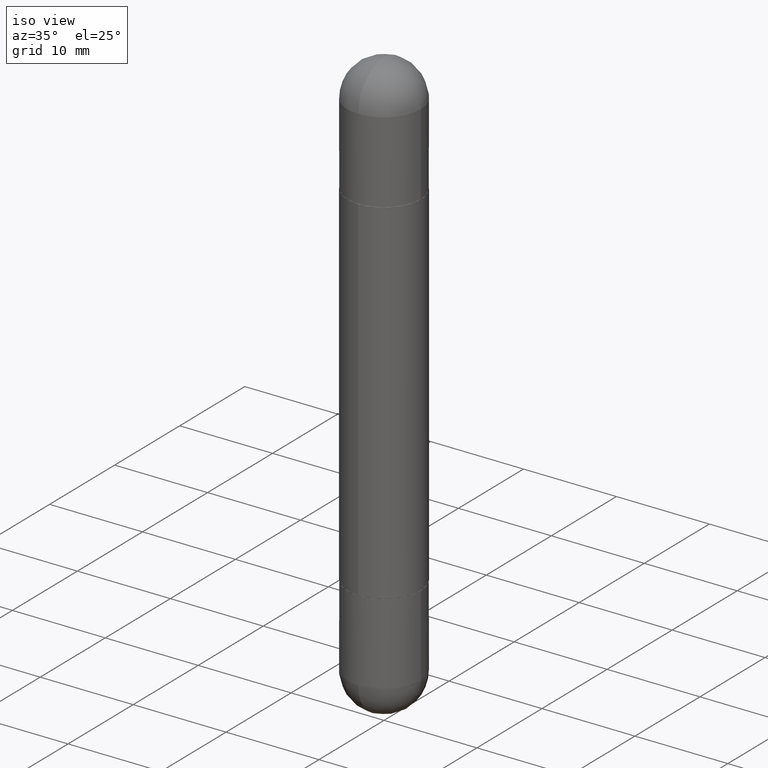
[diagram: clean part render]
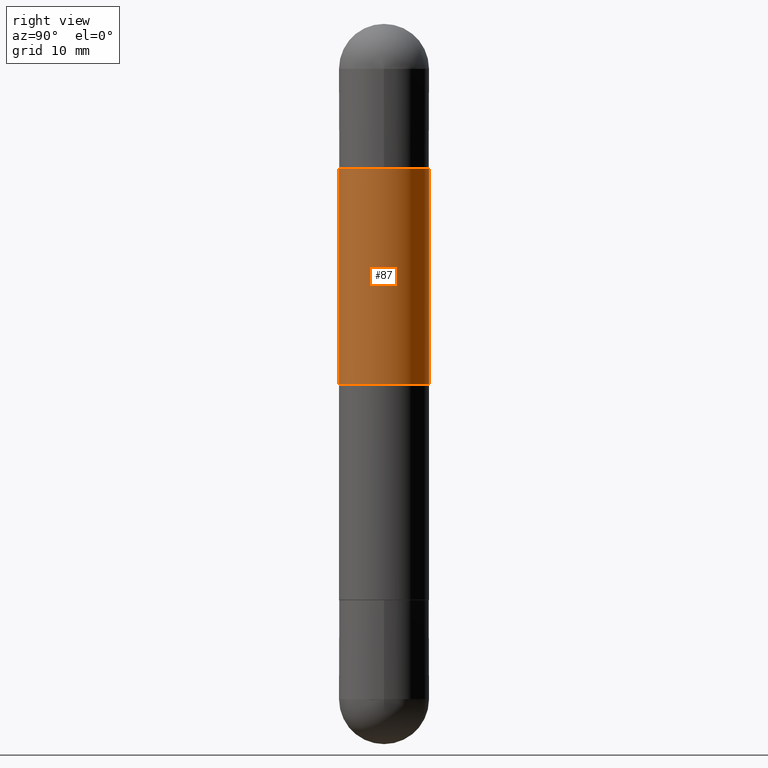
[diagram: tour spotlight — one face highlighted and labeled with its STEP entity id]
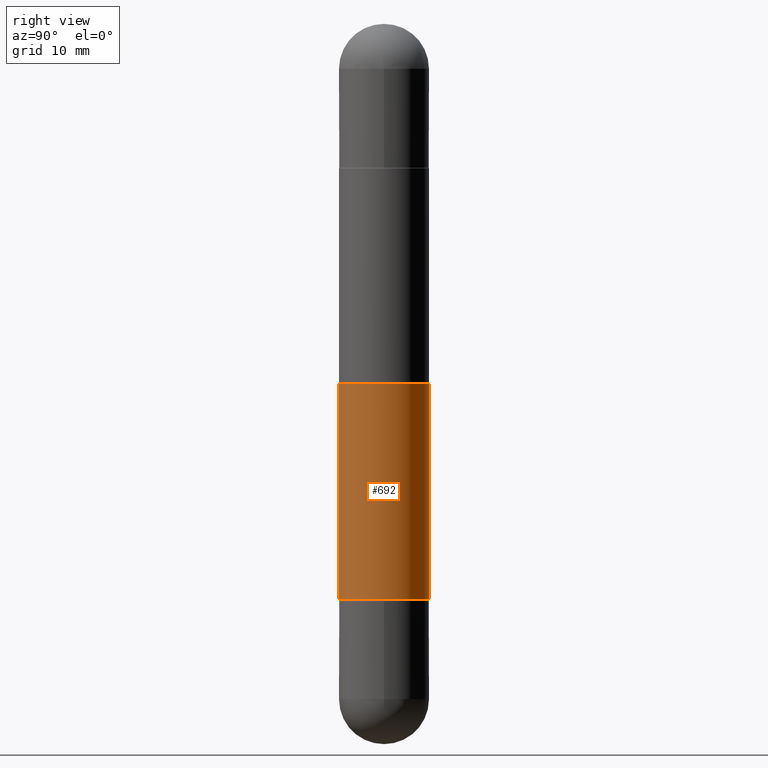
[diagram: tour spotlight — one face highlighted and labeled with its STEP entity id]
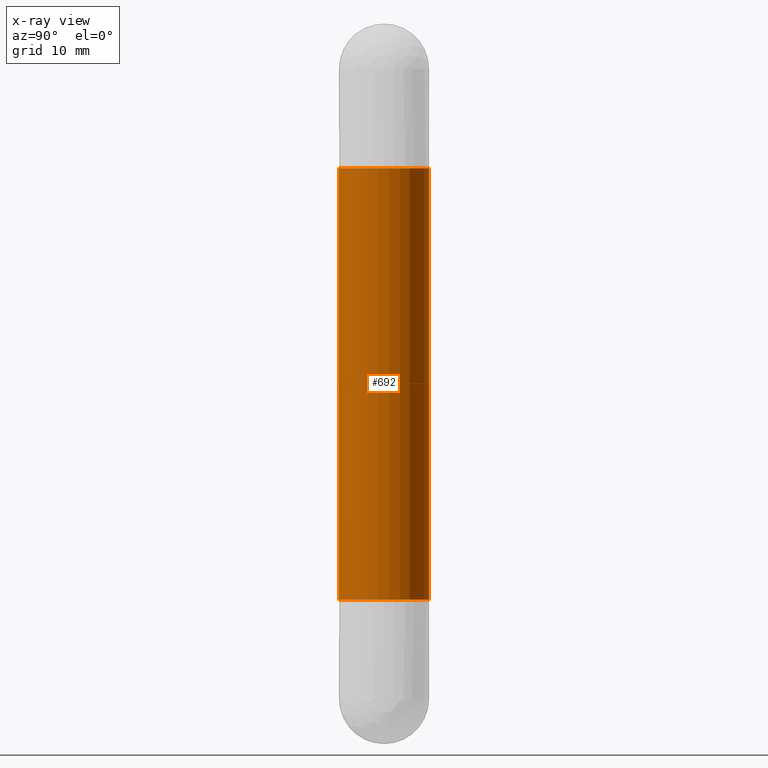
[diagram: x-ray of the same camera — body ghosted, this tour face saturated]
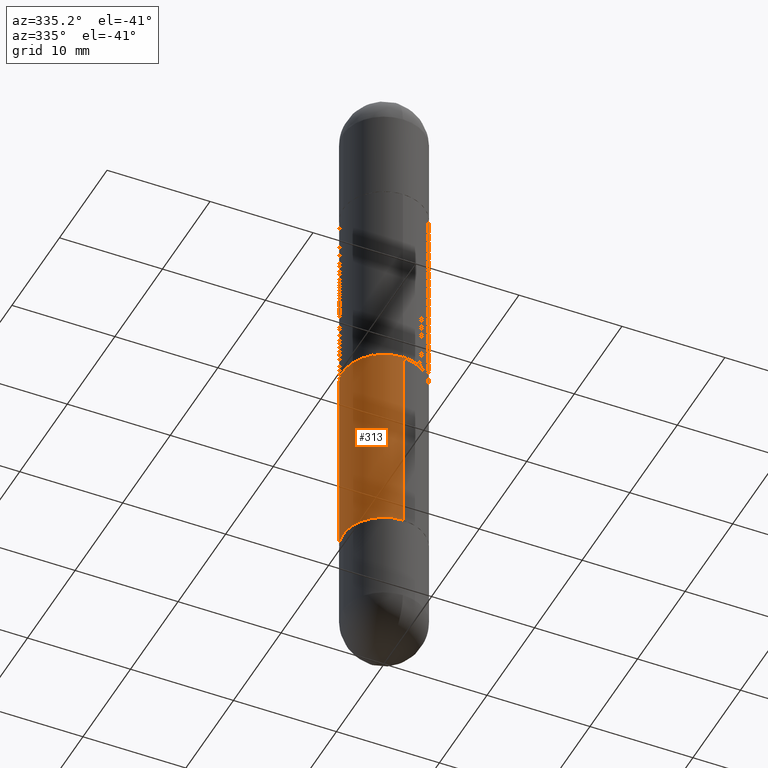
[diagram: tour spotlight — one face highlighted and labeled with its STEP entity id]
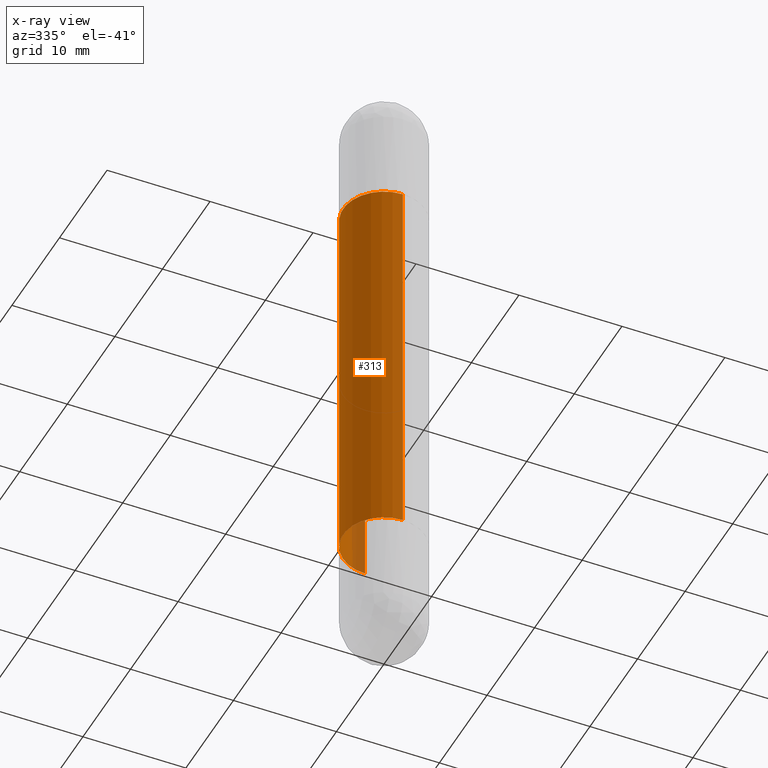
[diagram: x-ray of the same camera — body ghosted, this tour face saturated]
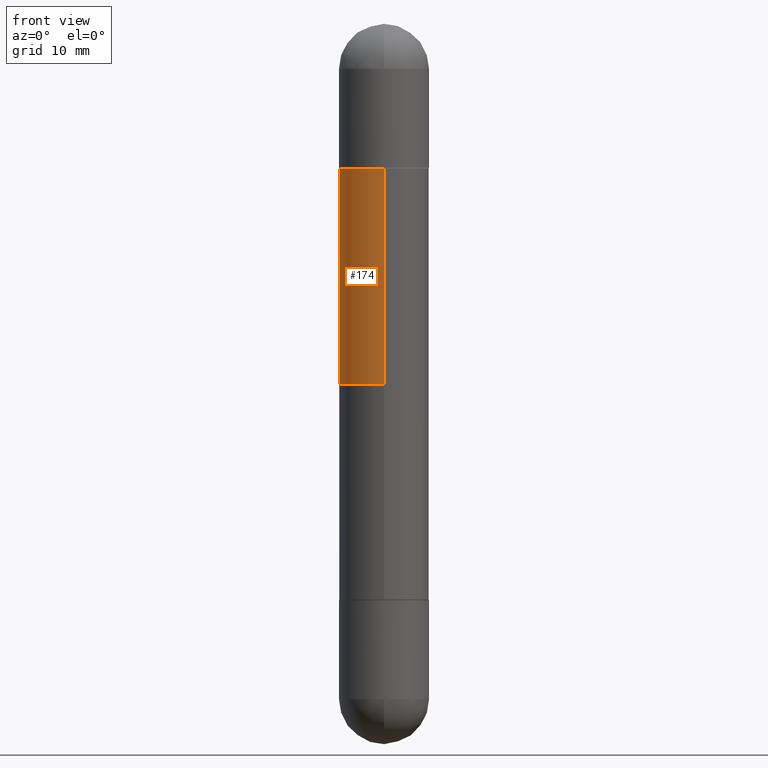
[diagram: tour spotlight — one face highlighted and labeled with its STEP entity id]
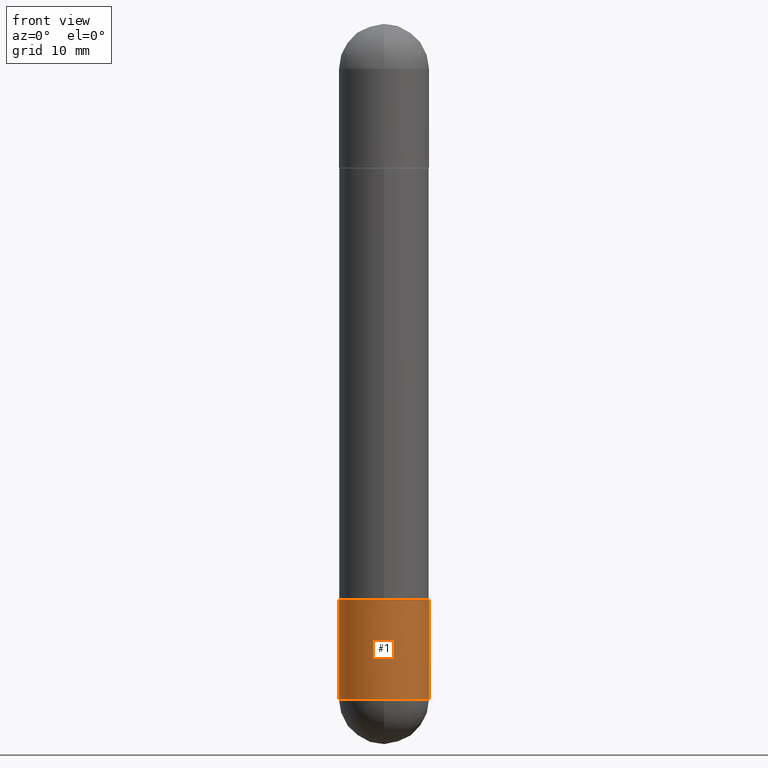
[diagram: tour spotlight — one face highlighted and labeled with its STEP entity id]
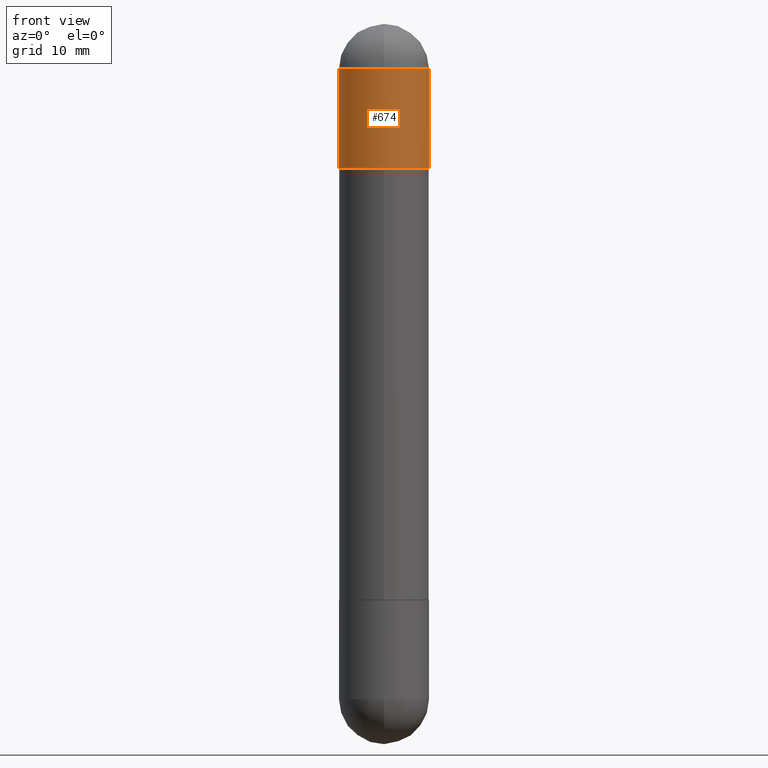
[diagram: tour spotlight — one face highlighted and labeled with its STEP entity id]
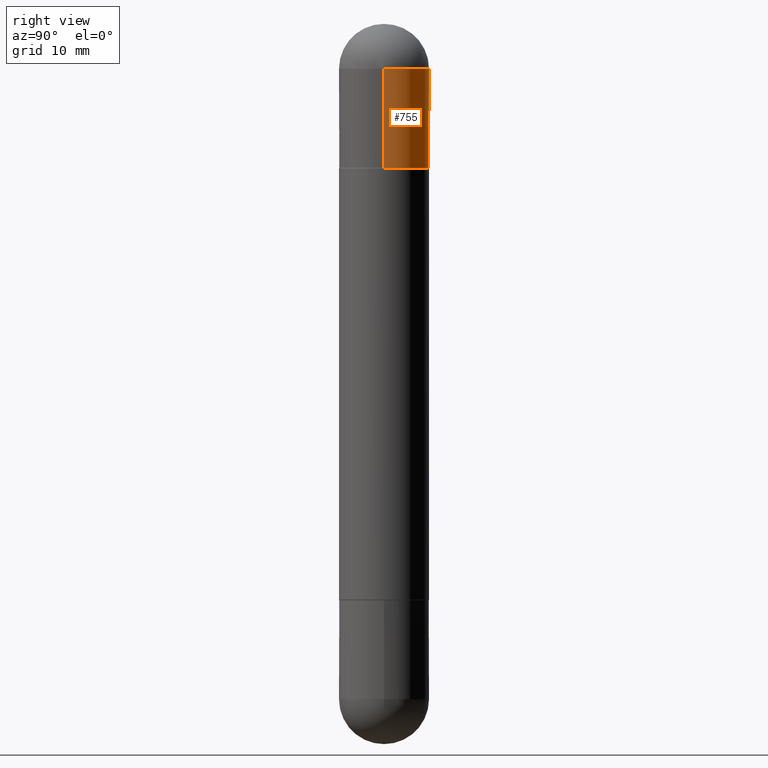
[diagram: tour spotlight — one face highlighted and labeled with its STEP entity id]
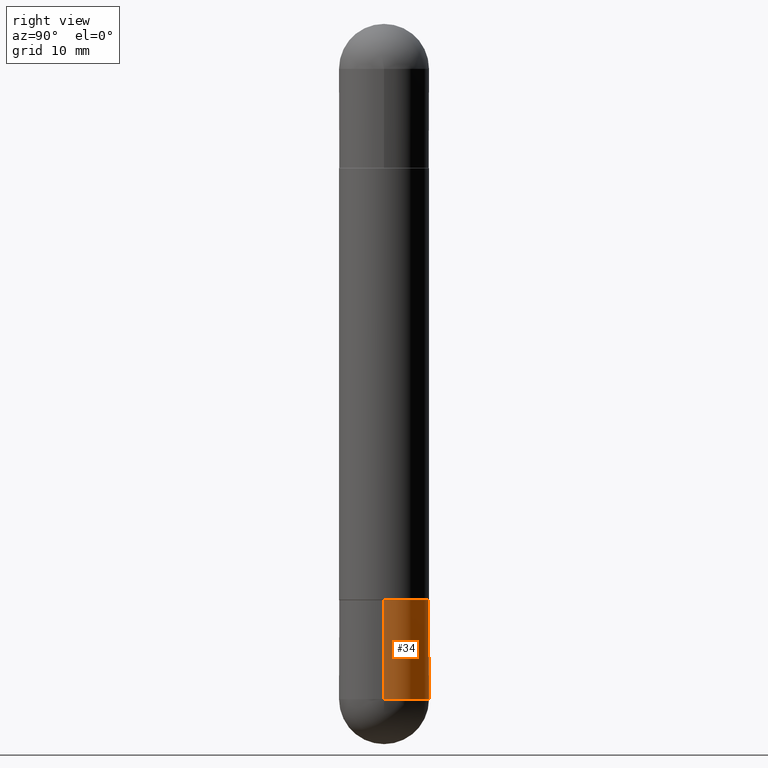
[diagram: tour spotlight — one face highlighted and labeled with its STEP entity id]
A machine part: a face-by-face anatomy tour. The part has 29 B-rep faces; the first image is the clean iso view, then the 8 largest visible faces are spotlighted one at a time (largest first), each with its STEP entity span.

Face 1 — right view, entity #87. In plain terms, the highlighted cylindrical surface (partial cylindrical patch) has radius 3.9688 mm, axis along (-0, 0, -1).
Definition (entity closure, byte-faithful):
#23 = DIRECTION ( 'NONE',  ( -1.000000000000000000, 0.000000000000000000, 0.000000000000000000 ) ) ;
#53 = CARTESIAN_POINT ( 'NONE',  ( 4.887097767456137558E-29, -6.981468022296990773E-15, -0.5010000000000007780 ) ) ;
#61 = CARTESIAN_POINT ( 'NONE',  ( -1.091087918388479568E-15, -0.1562500000000000833, -2.500000000000001332 ) ) ;
#74 = EDGE_LOOP ( 'NONE', ( #208, #501, #621, #330 ) ) ;
#79 = AXIS2_PLACEMENT_3D ( 'NONE', #650, #213, #463 ) ;
#85 = AXIS2_PLACEMENT_3D ( 'NONE', #53, #371, #298 ) ;
#87 = ADVANCED_FACE ( 'NONE', ( #531 ), #582, .T. ) ;
#161 = CARTESIAN_POINT ( 'NONE',  ( 1.071952812151851702E-15, 0.1562499999999931721, -0.5010000000000002229 ) ) ;
#169 = VERTEX_POINT ( 'NONE', #591 ) ;
#208 = ORIENTED_EDGE ( 'NONE', *, *, #406, .F. ) ;
#213 = DIRECTION ( 'NONE',  ( -2.444771269362750222E-29, 3.492480251274133284E-15, -1.000000000000000000 ) ) ;
#221 = CARTESIAN_POINT ( 'NONE',  ( 1.071952812151802201E-15, 0.1562500000000000833, -2.500000000000000000 ) ) ;
#231 = DIRECTION ( 'NONE',  ( -2.444771269362750222E-29, 3.492480251274133284E-15, -1.000000000000000000 ) ) ;
#243 = AXIS2_PLACEMENT_3D ( 'NONE', #785, #350, #23 ) ;
#298 = DIRECTION ( 'NONE',  ( -6.982962677686266711E-15, -1.000000000000000000, -3.496765431890253370E-15 ) ) ;
#304 = LINE ( 'NONE', #61, #421 ) ;
#305 = VERTEX_POINT ( 'NONE', #659 ) ;
#315 = VERTEX_POINT ( 'NONE', #161 ) ;
#330 = ORIENTED_EDGE ( 'NONE', *, *, #557, .F. ) ;
#350 = DIRECTION ( 'NONE',  ( -0.000000000000000000, -0.000000000000000000, -1.000000000000000000 ) ) ;
#371 = DIRECTION ( 'NONE',  ( 2.444771269362750222E-29, -3.492480251274133284E-15, 1.000000000000000000 ) ) ;
#406 = EDGE_CURVE ( 'NONE', #315, #305, #484, .T. ) ;
#421 = VECTOR ( 'NONE', #231, 39.37007874015748143 ) ;
#463 = DIRECTION ( 'NONE',  ( -6.982962677686265133E-15, -1.000000000000000000, -3.496765431890254947E-15 ) ) ;
#484 = LINE ( 'NONE', #221, #606 ) ;
#492 = CIRCLE ( 'NONE', #243, 0.1562500000000000833 ) ;
#501 = ORIENTED_EDGE ( 'NONE', *, *, #703, .F. ) ;
#531 = FACE_OUTER_BOUND ( 'NONE', #74, .T. ) ;
#557 = EDGE_CURVE ( 'NONE', #305, #169, #492, .T. ) ;
#582 = CYLINDRICAL_SURFACE ( 'NONE', #79, 0.1562500000000000833 ) ;
#588 = VERTEX_POINT ( 'NONE', #660 ) ;
#591 = CARTESIAN_POINT ( 'NONE',  ( -1.091087918388439730E-15, -0.1562500000000044409, -1.250000000000000222 ) ) ;
#606 = VECTOR ( 'NONE', #723, 39.37007874015748143 ) ;
#621 = ORIENTED_EDGE ( 'NONE', *, *, #781, .T. ) ;
#650 = CARTESIAN_POINT ( 'NONE',  ( 0.000000000000000000, 0.000000000000000000, -2.500000000000000444 ) ) ;
#659 = CARTESIAN_POINT ( 'NONE',  ( 1.071952812151850716E-15, 0.1562499999999956979, -1.250000000000000222 ) ) ;
#660 = CARTESIAN_POINT ( 'NONE',  ( -1.091087918388431447E-15, -0.1562500000000071887, -0.5010000000000013332 ) ) ;
#703 = EDGE_CURVE ( 'NONE', #588, #315, #740, .T. ) ;
#723 = DIRECTION ( 'NONE',  ( -2.444771269362750222E-29, 3.492480251274133284E-15, -1.000000000000000000 ) ) ;
#740 = CIRCLE ( 'NONE', #85, 0.1562500000000001665 ) ;
#781 = EDGE_CURVE ( 'NONE', #588, #169, #304, .T. ) ;
#785 = CARTESIAN_POINT ( 'NONE',  ( 3.055964086703438408E-29, -4.365600314092667690E-15, -1.250000000000000222 ) ) ;

Face 2 — right view, entity #692. An x-ray twin of the same camera follows (body ghosted, this face saturated) — the face is partly hidden behind the body. In plain terms, the highlighted cylindrical surface (partial cylindrical patch) has radius 3.9688 mm, axis along (-0, 0, -1).
Definition (entity closure, byte-faithful):
#3 = AXIS2_PLACEMENT_3D ( 'NONE', #590, #215, #717 ) ;
#35 = CARTESIAN_POINT ( 'NONE',  ( 1.071952812151851702E-15, 0.1562499999999931721, -0.5010000000000002229 ) ) ;
#49 = CARTESIAN_POINT ( 'NONE',  ( -1.091087918388479568E-15, -0.1562500000000000833, -2.500000000000001332 ) ) ;
#68 = DIRECTION ( 'NONE',  ( 2.444771269362750222E-29, -3.492480251274133284E-15, 1.000000000000000000 ) ) ;
#81 = ORIENTED_EDGE ( 'NONE', *, *, #493, .F. ) ;
#103 = DIRECTION ( 'NONE',  ( -2.444771269362750222E-29, 3.492480251274133284E-15, -1.000000000000000000 ) ) ;
#147 = AXIS2_PLACEMENT_3D ( 'NONE', #647, #585, #411 ) ;
#215 = DIRECTION ( 'NONE',  ( -2.444771269362750222E-29, 3.492480251274133284E-15, -1.000000000000000000 ) ) ;
#222 = VERTEX_POINT ( 'NONE', #663 ) ;
#235 = VECTOR ( 'NONE', #809, 39.37007874015748143 ) ;
#297 = CIRCLE ( 'NONE', #751, 0.1562500000000001665 ) ;
#306 = VERTEX_POINT ( 'NONE', #736 ) ;
#364 = VERTEX_POINT ( 'NONE', #35 ) ;
#411 = DIRECTION ( 'NONE',  ( -6.982962677686266711E-15, -1.000000000000000000, 3.496765431890253370E-15 ) ) ;
#469 = CARTESIAN_POINT ( 'NONE',  ( -1.091087918388431447E-15, -0.1562500000000071332, -1.998999999999999444 ) ) ;
#475 = CARTESIAN_POINT ( 'NONE',  ( 1.071952812151802201E-15, 0.1562500000000000833, -2.500000000000000000 ) ) ;
#479 = LINE ( 'NONE', #49, #235 ) ;
#493 = EDGE_CURVE ( 'NONE', #306, #364, #297, .T. ) ;
#496 = ORIENTED_EDGE ( 'NONE', *, *, #665, .T. ) ;
#523 = LINE ( 'NONE', #475, #645 ) ;
#530 = CIRCLE ( 'NONE', #147, 0.1562500000000001665 ) ;
#583 = CYLINDRICAL_SURFACE ( 'NONE', #3, 0.1562500000000000833 ) ;
#585 = DIRECTION ( 'NONE',  ( -2.444771269362750222E-29, 3.492480251274133284E-15, 1.000000000000000000 ) ) ;
#590 = CARTESIAN_POINT ( 'NONE',  ( 0.000000000000000000, 0.000000000000000000, -2.500000000000000444 ) ) ;
#605 = EDGE_CURVE ( 'NONE', #364, #222, #523, .T. ) ;
#625 = VERTEX_POINT ( 'NONE', #469 ) ;
#628 = DIRECTION ( 'NONE',  ( -6.982962677686266711E-15, -1.000000000000000000, -3.496765431890253370E-15 ) ) ;
#645 = VECTOR ( 'NONE', #103, 39.37007874015748143 ) ;
#647 = CARTESIAN_POINT ( 'NONE',  ( 4.887097767456137558E-29, -6.981468022296990773E-15, -1.998999999999999888 ) ) ;
#656 = FACE_OUTER_BOUND ( 'NONE', #733, .T. ) ;
#663 = CARTESIAN_POINT ( 'NONE',  ( 1.071952812151832967E-15, 0.1562499999999931999, -1.999000000000000554 ) ) ;
#665 = EDGE_CURVE ( 'NONE', #625, #222, #530, .T. ) ;
#687 = CARTESIAN_POINT ( 'NONE',  ( 4.887097767456137558E-29, -6.981468022296990773E-15, -0.5010000000000007780 ) ) ;
#692 = ADVANCED_FACE ( 'NONE', ( #656 ), #583, .T. ) ;
#717 = DIRECTION ( 'NONE',  ( -6.982962677686265133E-15, -1.000000000000000000, -3.496765431890254947E-15 ) ) ;
#733 = EDGE_LOOP ( 'NONE', ( #801, #81, #743, #496 ) ) ;
#736 = CARTESIAN_POINT ( 'NONE',  ( -1.091087918388431447E-15, -0.1562500000000071887, -0.5010000000000013332 ) ) ;
#743 = ORIENTED_EDGE ( 'NONE', *, *, #777, .T. ) ;
#751 = AXIS2_PLACEMENT_3D ( 'NONE', #687, #68, #628 ) ;
#777 = EDGE_CURVE ( 'NONE', #306, #625, #479, .T. ) ;
#801 = ORIENTED_EDGE ( 'NONE', *, *, #605, .F. ) ;
#809 = DIRECTION ( 'NONE',  ( -2.444771269362750222E-29, 3.492480251274133284E-15, -1.000000000000000000 ) ) ;

Face 3 — auxiliary view, entity #313. An x-ray twin of the same camera follows (body ghosted, this face saturated) — the face is partly hidden behind the body. In plain terms, the highlighted cylindrical surface (partial cylindrical patch) has radius 3.9688 mm, axis along (-0, 0, -1).
Definition (entity closure, byte-faithful):
#35 = CARTESIAN_POINT ( 'NONE',  ( 1.071952812151851702E-15, 0.1562499999999931721, -0.5010000000000002229 ) ) ;
#49 = CARTESIAN_POINT ( 'NONE',  ( -1.091087918388479568E-15, -0.1562500000000000833, -2.500000000000001332 ) ) ;
#82 = DIRECTION ( 'NONE',  ( -2.444771269362750222E-29, 3.492480251274133284E-15, 1.000000000000000000 ) ) ;
#103 = DIRECTION ( 'NONE',  ( -2.444771269362750222E-29, 3.492480251274133284E-15, -1.000000000000000000 ) ) ;
#105 = ORIENTED_EDGE ( 'NONE', *, *, #605, .T. ) ;
#114 = AXIS2_PLACEMENT_3D ( 'NONE', #316, #82, #273 ) ;
#115 = CARTESIAN_POINT ( 'NONE',  ( 0.000000000000000000, 0.000000000000000000, -2.500000000000000444 ) ) ;
#187 = FACE_OUTER_BOUND ( 'NONE', #365, .T. ) ;
#190 = CIRCLE ( 'NONE', #664, 0.1562500000000001665 ) ;
#222 = VERTEX_POINT ( 'NONE', #663 ) ;
#235 = VECTOR ( 'NONE', #809, 39.37007874015748143 ) ;
#273 = DIRECTION ( 'NONE',  ( -6.982962677686266711E-15, -1.000000000000000000, 3.496765431890253370E-15 ) ) ;
#301 = DIRECTION ( 'NONE',  ( -2.444771269362750222E-29, 3.492480251274133284E-15, -1.000000000000000000 ) ) ;
#306 = VERTEX_POINT ( 'NONE', #736 ) ;
#309 = CARTESIAN_POINT ( 'NONE',  ( 4.887097767456137558E-29, -6.981468022296990773E-15, -0.5010000000000007780 ) ) ;
#313 = ADVANCED_FACE ( 'NONE', ( #187 ), #672, .T. ) ;
#316 = CARTESIAN_POINT ( 'NONE',  ( 4.887097767456137558E-29, -6.981468022296990773E-15, -1.998999999999999888 ) ) ;
#324 = CIRCLE ( 'NONE', #114, 0.1562500000000001665 ) ;
#359 = DIRECTION ( 'NONE',  ( -6.982962677686266711E-15, -1.000000000000000000, -3.496765431890253370E-15 ) ) ;
#364 = VERTEX_POINT ( 'NONE', #35 ) ;
#365 = EDGE_LOOP ( 'NONE', ( #671, #105, #434, #682 ) ) ;
#434 = ORIENTED_EDGE ( 'NONE', *, *, #542, .T. ) ;
#469 = CARTESIAN_POINT ( 'NONE',  ( -1.091087918388431447E-15, -0.1562500000000071332, -1.998999999999999444 ) ) ;
#475 = CARTESIAN_POINT ( 'NONE',  ( 1.071952812151802201E-15, 0.1562500000000000833, -2.500000000000000000 ) ) ;
#479 = LINE ( 'NONE', #49, #235 ) ;
#523 = LINE ( 'NONE', #475, #645 ) ;
#542 = EDGE_CURVE ( 'NONE', #222, #625, #324, .T. ) ;
#605 = EDGE_CURVE ( 'NONE', #364, #222, #523, .T. ) ;
#608 = DIRECTION ( 'NONE',  ( 2.444771269362750222E-29, -3.492480251274133284E-15, 1.000000000000000000 ) ) ;
#625 = VERTEX_POINT ( 'NONE', #469 ) ;
#644 = AXIS2_PLACEMENT_3D ( 'NONE', #115, #301, #662 ) ;
#645 = VECTOR ( 'NONE', #103, 39.37007874015748143 ) ;
#662 = DIRECTION ( 'NONE',  ( -6.982962677686265133E-15, -1.000000000000000000, -3.496765431890254947E-15 ) ) ;
#663 = CARTESIAN_POINT ( 'NONE',  ( 1.071952812151832967E-15, 0.1562499999999931999, -1.999000000000000554 ) ) ;
#664 = AXIS2_PLACEMENT_3D ( 'NONE', #309, #608, #359 ) ;
#671 = ORIENTED_EDGE ( 'NONE', *, *, #727, .F. ) ;
#672 = CYLINDRICAL_SURFACE ( 'NONE', #644, 0.1562500000000000833 ) ;
#682 = ORIENTED_EDGE ( 'NONE', *, *, #777, .F. ) ;
#727 = EDGE_CURVE ( 'NONE', #364, #306, #190, .T. ) ;
#736 = CARTESIAN_POINT ( 'NONE',  ( -1.091087918388431447E-15, -0.1562500000000071887, -0.5010000000000013332 ) ) ;
#777 = EDGE_CURVE ( 'NONE', #306, #625, #479, .T. ) ;
#809 = DIRECTION ( 'NONE',  ( -2.444771269362750222E-29, 3.492480251274133284E-15, -1.000000000000000000 ) ) ;

Face 4 — front view, entity #174. In plain terms, the highlighted cylindrical surface (partial cylindrical patch) has radius 3.9688 mm, axis along (-0, 0, -1).
Definition (entity closure, byte-faithful):
#10 = EDGE_LOOP ( 'NONE', ( #666, #443, #438, #497 ) ) ;
#61 = CARTESIAN_POINT ( 'NONE',  ( -1.091087918388479568E-15, -0.1562500000000000833, -2.500000000000001332 ) ) ;
#104 = CARTESIAN_POINT ( 'NONE',  ( 0.000000000000000000, 0.000000000000000000, -2.500000000000000444 ) ) ;
#161 = CARTESIAN_POINT ( 'NONE',  ( 1.071952812151851702E-15, 0.1562499999999931721, -0.5010000000000002229 ) ) ;
#169 = VERTEX_POINT ( 'NONE', #591 ) ;
#174 = ADVANCED_FACE ( 'NONE', ( #800 ), #286, .T. ) ;
#203 = EDGE_CURVE ( 'NONE', #315, #588, #236, .T. ) ;
#221 = CARTESIAN_POINT ( 'NONE',  ( 1.071952812151802201E-15, 0.1562500000000000833, -2.500000000000000000 ) ) ;
#231 = DIRECTION ( 'NONE',  ( -2.444771269362750222E-29, 3.492480251274133284E-15, -1.000000000000000000 ) ) ;
#236 = CIRCLE ( 'NONE', #489, 0.1562500000000001665 ) ;
#271 = AXIS2_PLACEMENT_3D ( 'NONE', #472, #353, #418 ) ;
#286 = CYLINDRICAL_SURFACE ( 'NONE', #515, 0.1562500000000000833 ) ;
#304 = LINE ( 'NONE', #61, #421 ) ;
#305 = VERTEX_POINT ( 'NONE', #659 ) ;
#315 = VERTEX_POINT ( 'NONE', #161 ) ;
#325 = EDGE_CURVE ( 'NONE', #169, #305, #619, .T. ) ;
#353 = DIRECTION ( 'NONE',  ( -0.000000000000000000, -0.000000000000000000, -1.000000000000000000 ) ) ;
#405 = DIRECTION ( 'NONE',  ( -2.444771269362750222E-29, 3.492480251274133284E-15, -1.000000000000000000 ) ) ;
#406 = EDGE_CURVE ( 'NONE', #315, #305, #484, .T. ) ;
#418 = DIRECTION ( 'NONE',  ( -1.000000000000000000, 0.000000000000000000, 0.000000000000000000 ) ) ;
#421 = VECTOR ( 'NONE', #231, 39.37007874015748143 ) ;
#438 = ORIENTED_EDGE ( 'NONE', *, *, #325, .F. ) ;
#443 = ORIENTED_EDGE ( 'NONE', *, *, #406, .T. ) ;
#472 = CARTESIAN_POINT ( 'NONE',  ( 3.055964086703438408E-29, -4.365600314092667690E-15, -1.250000000000000222 ) ) ;
#480 = CARTESIAN_POINT ( 'NONE',  ( 4.887097767456137558E-29, -6.981468022296990773E-15, -0.5010000000000007780 ) ) ;
#484 = LINE ( 'NONE', #221, #606 ) ;
#489 = AXIS2_PLACEMENT_3D ( 'NONE', #480, #596, #648 ) ;
#497 = ORIENTED_EDGE ( 'NONE', *, *, #781, .F. ) ;
#515 = AXIS2_PLACEMENT_3D ( 'NONE', #104, #405, #786 ) ;
#588 = VERTEX_POINT ( 'NONE', #660 ) ;
#591 = CARTESIAN_POINT ( 'NONE',  ( -1.091087918388439730E-15, -0.1562500000000044409, -1.250000000000000222 ) ) ;
#596 = DIRECTION ( 'NONE',  ( 2.444771269362750222E-29, -3.492480251274133284E-15, 1.000000000000000000 ) ) ;
#606 = VECTOR ( 'NONE', #723, 39.37007874015748143 ) ;
#619 = CIRCLE ( 'NONE', #271, 0.1562500000000000833 ) ;
#648 = DIRECTION ( 'NONE',  ( -6.982962677686266711E-15, -1.000000000000000000, -3.496765431890253370E-15 ) ) ;
#659 = CARTESIAN_POINT ( 'NONE',  ( 1.071952812151850716E-15, 0.1562499999999956979, -1.250000000000000222 ) ) ;
#660 = CARTESIAN_POINT ( 'NONE',  ( -1.091087918388431447E-15, -0.1562500000000071887, -0.5010000000000013332 ) ) ;
#666 = ORIENTED_EDGE ( 'NONE', *, *, #203, .F. ) ;
#723 = DIRECTION ( 'NONE',  ( -2.444771269362750222E-29, 3.492480251274133284E-15, -1.000000000000000000 ) ) ;
#781 = EDGE_CURVE ( 'NONE', #588, #169, #304, .T. ) ;
#786 = DIRECTION ( 'NONE',  ( -6.982962677686265133E-15, -1.000000000000000000, -3.496765431890254947E-15 ) ) ;
#800 = FACE_OUTER_BOUND ( 'NONE', #10, .T. ) ;

Face 5 — front view, entity #1. In plain terms, the highlighted cylindrical surface (partial cylindrical patch) has radius 3.9688 mm, axis along (-0, 0, 1).
Definition (entity closure, byte-faithful):
#1 = ADVANCED_FACE ( 'NONE', ( #642 ), #84, .T. ) ;
#11 = DIRECTION ( 'NONE',  ( -2.445468806185136877E-29, 3.491481338843145188E-15, 1.000000000000000000 ) ) ;
#41 = DIRECTION ( 'NONE',  ( -2.445468806185136597E-29, 3.491481338843145583E-15, 1.000000000000000000 ) ) ;
#43 = CARTESIAN_POINT ( 'NONE',  ( 5.731567514496413899E-29, -8.183159387913622595E-15, -2.343750000000000000 ) ) ;
#77 = VERTEX_POINT ( 'NONE', #710 ) ;
#84 = CYLINDRICAL_SURFACE ( 'NONE', #93, 0.1562500000000000000 ) ;
#93 = AXIS2_PLACEMENT_3D ( 'NONE', #337, #758, #196 ) ;
#96 = DIRECTION ( 'NONE',  ( -2.445468806185136597E-29, 3.491481338843145583E-15, 1.000000000000000000 ) ) ;
#144 = CARTESIAN_POINT ( 'NONE',  ( -0.1562500000000000000, -6.472838008174800734E-15, -2.343750000000000000 ) ) ;
#155 = AXIS2_PLACEMENT_3D ( 'NONE', #351, #41, #795 ) ;
#173 = EDGE_LOOP ( 'NONE', ( #567, #453, #498, #491, #609 ) ) ;
#176 = VECTOR ( 'NONE', #459, 39.37007874015748143 ) ;
#177 = EDGE_CURVE ( 'NONE', #77, #783, #762, .T. ) ;
#196 = DIRECTION ( 'NONE',  ( 1.000000000000000000, -6.982962677686266711E-15, 4.876176775795936353E-29 ) ) ;
#254 = LINE ( 'NONE', #263, #796 ) ;
#263 = CARTESIAN_POINT ( 'NONE',  ( -0.1562500000000000000, 1.110223024625156540E-15, -7.685836078523291160E-30 ) ) ;
#265 = EDGE_CURVE ( 'NONE', #572, #77, #632, .T. ) ;
#275 = CARTESIAN_POINT ( 'NONE',  ( 0.1562500000000000000, -1.091087918388479174E-15, 7.619026212181150377E-30 ) ) ;
#337 = CARTESIAN_POINT ( 'NONE',  ( 0.000000000000000000, 0.000000000000000000, 0.000000000000000000 ) ) ;
#351 = CARTESIAN_POINT ( 'NONE',  ( 5.731567514496413899E-29, -8.183159387913622595E-15, -2.343750000000000000 ) ) ;
#363 = CARTESIAN_POINT ( 'NONE',  ( 4.890937612370273194E-29, -6.982962677686291165E-15, -2.000000000000000000 ) ) ;
#368 = AXIS2_PLACEMENT_3D ( 'NONE', #363, #668, #799 ) ;
#422 = CARTESIAN_POINT ( 'NONE',  ( 0.1562500000000000000, -8.074050596074770339E-15, -2.000000000000000000 ) ) ;
#453 = ORIENTED_EDGE ( 'NONE', *, *, #265, .T. ) ;
#459 = DIRECTION ( 'NONE',  ( -2.445468806185136877E-29, 3.491481338843145188E-15, 1.000000000000000000 ) ) ;
#485 = EDGE_CURVE ( 'NONE', #572, #655, #254, .T. ) ;
#491 = ORIENTED_EDGE ( 'NONE', *, *, #571, .T. ) ;
#498 = ORIENTED_EDGE ( 'NONE', *, *, #177, .T. ) ;
#567 = ORIENTED_EDGE ( 'NONE', *, *, #485, .F. ) ;
#571 = EDGE_CURVE ( 'NONE', #783, #738, #595, .T. ) ;
#572 = VERTEX_POINT ( 'NONE', #144 ) ;
#595 = LINE ( 'NONE', #275, #176 ) ;
#598 = CARTESIAN_POINT ( 'NONE',  ( -0.1562500000000000000, -6.472838008174799945E-15, -2.000000000000000000 ) ) ;
#601 = DIRECTION ( 'NONE',  ( 1.000000000000000000, -6.982962677686262766E-15, 0.000000000000000000 ) ) ;
#609 = ORIENTED_EDGE ( 'NONE', *, *, #766, .F. ) ;
#614 = CIRCLE ( 'NONE', #368, 0.1562500000000000000 ) ;
#632 = CIRCLE ( 'NONE', #769, 0.1562500000000000000 ) ;
#642 = FACE_OUTER_BOUND ( 'NONE', #173, .T. ) ;
#655 = VERTEX_POINT ( 'NONE', #598 ) ;
#668 = DIRECTION ( 'NONE',  ( -2.445468806185136597E-29, 3.491481338843145583E-15, 1.000000000000000000 ) ) ;
#677 = CARTESIAN_POINT ( 'NONE',  ( 0.1562500000000000000, -8.674148951188436448E-15, -2.343750000000000000 ) ) ;
#710 = CARTESIAN_POINT ( 'NONE',  ( -1.110223024625101517E-15, -0.1562500000000085487, -2.343749999999999556 ) ) ;
#738 = VERTEX_POINT ( 'NONE', #422 ) ;
#758 = DIRECTION ( 'NONE',  ( -2.445468806185136597E-29, 3.491481338843145583E-15, 1.000000000000000000 ) ) ;
#762 = CIRCLE ( 'NONE', #155, 0.1562500000000000000 ) ;
#766 = EDGE_CURVE ( 'NONE', #655, #738, #614, .T. ) ;
#769 = AXIS2_PLACEMENT_3D ( 'NONE', #43, #96, #601 ) ;
#783 = VERTEX_POINT ( 'NONE', #677 ) ;
#795 = DIRECTION ( 'NONE',  ( 1.000000000000000000, -6.982962677686262766E-15, 0.000000000000000000 ) ) ;
#796 = VECTOR ( 'NONE', #11, 39.37007874015748143 ) ;
#799 = DIRECTION ( 'NONE',  ( 1.000000000000000000, -6.982962677686269077E-15, 0.000000000000000000 ) ) ;

Face 6 — front view, entity #674. In plain terms, the highlighted cylindrical surface (partial cylindrical patch) has radius 3.9688 mm, axis along (-0, 0, -1).
Definition (entity closure, byte-faithful):
#25 = DIRECTION ( 'NONE',  ( -2.445468806185136877E-29, 3.491481338843145188E-15, -1.000000000000000000 ) ) ;
#36 = DIRECTION ( 'NONE',  ( 2.445468806185136597E-29, -3.491481338843145583E-15, 1.000000000000000000 ) ) ;
#47 = CIRCLE ( 'NONE', #72, 0.1562500000000000000 ) ;
#51 = EDGE_CURVE ( 'NONE', #564, #258, #283, .T. ) ;
#57 = ORIENTED_EDGE ( 'NONE', *, *, #256, .T. ) ;
#67 = EDGE_LOOP ( 'NONE', ( #179, #803, #57, #575, #556 ) ) ;
#72 = AXIS2_PLACEMENT_3D ( 'NONE', #156, #218, #99 ) ;
#86 = LINE ( 'NONE', #148, #634 ) ;
#99 = DIRECTION ( 'NONE',  ( 1.000000000000000000, -6.982962677686262766E-15, 0.000000000000000000 ) ) ;
#108 = CARTESIAN_POINT ( 'NONE',  ( -1.071952812151746981E-15, -0.1562500000000085487, -0.1562500000000011102 ) ) ;
#148 = CARTESIAN_POINT ( 'NONE',  ( -0.1562500000000000000, 1.071952812151801807E-15, -2.500000000000000444 ) ) ;
#153 = CARTESIAN_POINT ( 'NONE',  ( 0.1562500000000000000, -8.074050596074770339E-15, -0.5000000000000006661 ) ) ;
#156 = CARTESIAN_POINT ( 'NONE',  ( 5.731567514496413899E-29, -8.183159387913622595E-15, -0.1562500000000005551 ) ) ;
#179 = ORIENTED_EDGE ( 'NONE', *, *, #617, .F. ) ;
#186 = VERTEX_POINT ( 'NONE', #108 ) ;
#209 = FACE_OUTER_BOUND ( 'NONE', #67, .T. ) ;
#218 = DIRECTION ( 'NONE',  ( 2.445468806185136597E-29, -3.491481338843145583E-15, 1.000000000000000000 ) ) ;
#256 = EDGE_CURVE ( 'NONE', #516, #258, #544, .T. ) ;
#258 = VERTEX_POINT ( 'NONE', #153 ) ;
#278 = DIRECTION ( 'NONE',  ( 1.000000000000000000, -6.982962677686266711E-15, 0.000000000000000000 ) ) ;
#283 = LINE ( 'NONE', #339, #679 ) ;
#288 = CARTESIAN_POINT ( 'NONE',  ( 0.1562500000000000000, -8.674148951188436448E-15, -0.1562500000000005551 ) ) ;
#308 = VERTEX_POINT ( 'NONE', #726 ) ;
#323 = AXIS2_PLACEMENT_3D ( 'NONE', #790, #718, #476 ) ;
#339 = CARTESIAN_POINT ( 'NONE',  ( 0.1562500000000000000, -1.091087918388479174E-15, -2.500000000000000444 ) ) ;
#346 = CYLINDRICAL_SURFACE ( 'NONE', #675, 0.1562500000000000000 ) ;
#404 = DIRECTION ( 'NONE',  ( -2.445468806185136877E-29, 3.491481338843145188E-15, -1.000000000000000000 ) ) ;
#457 = CARTESIAN_POINT ( 'NONE',  ( 0.000000000000000000, 0.000000000000000000, -2.500000000000000444 ) ) ;
#476 = DIRECTION ( 'NONE',  ( 1.000000000000000000, -6.982962677686269077E-15, 0.000000000000000000 ) ) ;
#508 = CIRCLE ( 'NONE', #782, 0.1562500000000000000 ) ;
#516 = VERTEX_POINT ( 'NONE', #640 ) ;
#544 = CIRCLE ( 'NONE', #323, 0.1562500000000000000 ) ;
#556 = ORIENTED_EDGE ( 'NONE', *, *, #641, .F. ) ;
#564 = VERTEX_POINT ( 'NONE', #288 ) ;
#575 = ORIENTED_EDGE ( 'NONE', *, *, #51, .F. ) ;
#617 = EDGE_CURVE ( 'NONE', #308, #186, #47, .T. ) ;
#634 = VECTOR ( 'NONE', #404, 39.37007874015748143 ) ;
#636 = EDGE_CURVE ( 'NONE', #308, #516, #86, .T. ) ;
#640 = CARTESIAN_POINT ( 'NONE',  ( -0.1562500000000000000, -6.511108220648155468E-15, -0.5000000000000006661 ) ) ;
#641 = EDGE_CURVE ( 'NONE', #186, #564, #508, .T. ) ;
#643 = DIRECTION ( 'NONE',  ( -2.445468806185136597E-29, 3.491481338843145583E-15, -1.000000000000000000 ) ) ;
#674 = ADVANCED_FACE ( 'NONE', ( #209 ), #346, .T. ) ;
#675 = AXIS2_PLACEMENT_3D ( 'NONE', #457, #643, #278 ) ;
#679 = VECTOR ( 'NONE', #25, 39.37007874015748143 ) ;
#718 = DIRECTION ( 'NONE',  ( 2.445468806185136597E-29, -3.491481338843145583E-15, 1.000000000000000000 ) ) ;
#721 = DIRECTION ( 'NONE',  ( 1.000000000000000000, -6.982962677686262766E-15, 0.000000000000000000 ) ) ;
#726 = CARTESIAN_POINT ( 'NONE',  ( -0.1562500000000000000, -6.511108220648156257E-15, -0.1562500000000005551 ) ) ;
#782 = AXIS2_PLACEMENT_3D ( 'NONE', #789, #36, #721 ) ;
#789 = CARTESIAN_POINT ( 'NONE',  ( 5.731567514496413899E-29, -8.183159387913622595E-15, -0.1562500000000005551 ) ) ;
#790 = CARTESIAN_POINT ( 'NONE',  ( 4.890937612370273194E-29, -6.982962677686291165E-15, -0.5000000000000006661 ) ) ;
#803 = ORIENTED_EDGE ( 'NONE', *, *, #636, .T. ) ;

Face 7 — right view, entity #755. In plain terms, the highlighted cylindrical surface (partial cylindrical patch) has radius 3.9688 mm, axis along (-0, 0, -1).
Definition (entity closure, byte-faithful):
#25 = DIRECTION ( 'NONE',  ( -2.445468806185136877E-29, 3.491481338843145188E-15, -1.000000000000000000 ) ) ;
#51 = EDGE_CURVE ( 'NONE', #564, #258, #283, .T. ) ;
#58 = ORIENTED_EDGE ( 'NONE', *, *, #467, .F. ) ;
#69 = ORIENTED_EDGE ( 'NONE', *, *, #760, .F. ) ;
#75 = DIRECTION ( 'NONE',  ( 1.000000000000000000, -6.982962677686262766E-15, 0.000000000000000000 ) ) ;
#78 = DIRECTION ( 'NONE',  ( 1.000000000000000000, -6.982962677686269077E-15, 0.000000000000000000 ) ) ;
#86 = LINE ( 'NONE', #148, #634 ) ;
#110 = FACE_OUTER_BOUND ( 'NONE', #742, .T. ) ;
#112 = ORIENTED_EDGE ( 'NONE', *, *, #461, .T. ) ;
#132 = CIRCLE ( 'NONE', #249, 0.1562500000000000000 ) ;
#142 = CARTESIAN_POINT ( 'NONE',  ( 4.890937612370273194E-29, -6.982962677686291165E-15, -0.5000000000000006661 ) ) ;
#148 = CARTESIAN_POINT ( 'NONE',  ( -0.1562500000000000000, 1.071952812151801807E-15, -2.500000000000000444 ) ) ;
#153 = CARTESIAN_POINT ( 'NONE',  ( 0.1562500000000000000, -8.074050596074770339E-15, -0.5000000000000006661 ) ) ;
#178 = DIRECTION ( 'NONE',  ( 1.000000000000000000, -6.982962677686266711E-15, 0.000000000000000000 ) ) ;
#212 = AXIS2_PLACEMENT_3D ( 'NONE', #142, #565, #78 ) ;
#226 = CARTESIAN_POINT ( 'NONE',  ( 0.000000000000000000, 0.000000000000000000, -2.500000000000000444 ) ) ;
#245 = DIRECTION ( 'NONE',  ( 2.445468806185136597E-29, -3.491481338843145583E-15, 1.000000000000000000 ) ) ;
#249 = AXIS2_PLACEMENT_3D ( 'NONE', #737, #245, #546 ) ;
#258 = VERTEX_POINT ( 'NONE', #153 ) ;
#262 = ORIENTED_EDGE ( 'NONE', *, *, #51, .T. ) ;
#283 = LINE ( 'NONE', #339, #679 ) ;
#288 = CARTESIAN_POINT ( 'NONE',  ( 0.1562500000000000000, -8.674148951188436448E-15, -0.1562500000000005551 ) ) ;
#308 = VERTEX_POINT ( 'NONE', #726 ) ;
#335 = CIRCLE ( 'NONE', #212, 0.1562500000000000000 ) ;
#338 = CARTESIAN_POINT ( 'NONE',  ( 1.091087918388535577E-15, 0.1562499999999916733, -0.1562500000000000000 ) ) ;
#339 = CARTESIAN_POINT ( 'NONE',  ( 0.1562500000000000000, -1.091087918388479174E-15, -2.500000000000000444 ) ) ;
#404 = DIRECTION ( 'NONE',  ( -2.445468806185136877E-29, 3.491481338843145188E-15, -1.000000000000000000 ) ) ;
#426 = CIRCLE ( 'NONE', #558, 0.1562500000000000000 ) ;
#451 = DIRECTION ( 'NONE',  ( 2.445468806185136597E-29, -3.491481338843145583E-15, 1.000000000000000000 ) ) ;
#461 = EDGE_CURVE ( 'NONE', #258, #516, #335, .T. ) ;
#467 = EDGE_CURVE ( 'NONE', #686, #308, #426, .T. ) ;
#516 = VERTEX_POINT ( 'NONE', #640 ) ;
#538 = AXIS2_PLACEMENT_3D ( 'NONE', #226, #680, #178 ) ;
#546 = DIRECTION ( 'NONE',  ( 1.000000000000000000, -6.982962677686262766E-15, 0.000000000000000000 ) ) ;
#558 = AXIS2_PLACEMENT_3D ( 'NONE', #696, #451, #75 ) ;
#564 = VERTEX_POINT ( 'NONE', #288 ) ;
#565 = DIRECTION ( 'NONE',  ( 2.445468806185136597E-29, -3.491481338843145583E-15, 1.000000000000000000 ) ) ;
#612 = CYLINDRICAL_SURFACE ( 'NONE', #538, 0.1562500000000000000 ) ;
#634 = VECTOR ( 'NONE', #404, 39.37007874015748143 ) ;
#636 = EDGE_CURVE ( 'NONE', #308, #516, #86, .T. ) ;
#640 = CARTESIAN_POINT ( 'NONE',  ( -0.1562500000000000000, -6.511108220648155468E-15, -0.5000000000000006661 ) ) ;
#679 = VECTOR ( 'NONE', #25, 39.37007874015748143 ) ;
#680 = DIRECTION ( 'NONE',  ( -2.445468806185136597E-29, 3.491481338843145583E-15, -1.000000000000000000 ) ) ;
#686 = VERTEX_POINT ( 'NONE', #338 ) ;
#695 = ORIENTED_EDGE ( 'NONE', *, *, #636, .F. ) ;
#696 = CARTESIAN_POINT ( 'NONE',  ( 5.731567514496413899E-29, -8.183159387913622595E-15, -0.1562500000000005551 ) ) ;
#726 = CARTESIAN_POINT ( 'NONE',  ( -0.1562500000000000000, -6.511108220648156257E-15, -0.1562500000000005551 ) ) ;
#737 = CARTESIAN_POINT ( 'NONE',  ( 5.731567514496413899E-29, -8.183159387913622595E-15, -0.1562500000000005551 ) ) ;
#742 = EDGE_LOOP ( 'NONE', ( #695, #58, #69, #262, #112 ) ) ;
#755 = ADVANCED_FACE ( 'NONE', ( #110 ), #612, .T. ) ;
#760 = EDGE_CURVE ( 'NONE', #564, #686, #132, .T. ) ;

Face 8 — right view, entity #34. In plain terms, the highlighted cylindrical surface (partial cylindrical patch) has radius 3.9688 mm, axis along (-0, 0, 1).
Definition (entity closure, byte-faithful):
#11 = DIRECTION ( 'NONE',  ( -2.445468806185136877E-29, 3.491481338843145188E-15, 1.000000000000000000 ) ) ;
#28 = DIRECTION ( 'NONE',  ( 1.000000000000000000, -6.982962677686269077E-15, 0.000000000000000000 ) ) ;
#34 = ADVANCED_FACE ( 'NONE', ( #778 ), #150, .T. ) ;
#46 = AXIS2_PLACEMENT_3D ( 'NONE', #95, #460, #28 ) ;
#60 = ORIENTED_EDGE ( 'NONE', *, *, #485, .T. ) ;
#88 = DIRECTION ( 'NONE',  ( 1.000000000000000000, -6.982962677686266711E-15, 4.876176775795936353E-29 ) ) ;
#95 = CARTESIAN_POINT ( 'NONE',  ( 4.890937612370273194E-29, -6.982962677686291165E-15, -2.000000000000000000 ) ) ;
#102 = DIRECTION ( 'NONE',  ( 1.000000000000000000, -6.982962677686262766E-15, 0.000000000000000000 ) ) ;
#106 = DIRECTION ( 'NONE',  ( -2.445468806185136597E-29, 3.491481338843145583E-15, 1.000000000000000000 ) ) ;
#137 = CIRCLE ( 'NONE', #46, 0.1562500000000000000 ) ;
#144 = CARTESIAN_POINT ( 'NONE',  ( -0.1562500000000000000, -6.472838008174800734E-15, -2.343750000000000000 ) ) ;
#150 = CYLINDRICAL_SURFACE ( 'NONE', #317, 0.1562500000000000000 ) ;
#176 = VECTOR ( 'NONE', #459, 39.37007874015748143 ) ;
#239 = EDGE_CURVE ( 'NONE', #738, #655, #137, .T. ) ;
#254 = LINE ( 'NONE', #263, #796 ) ;
#259 = EDGE_CURVE ( 'NONE', #783, #772, #518, .T. ) ;
#263 = CARTESIAN_POINT ( 'NONE',  ( -0.1562500000000000000, 1.110223024625156540E-15, -7.685836078523291160E-30 ) ) ;
#275 = CARTESIAN_POINT ( 'NONE',  ( 0.1562500000000000000, -1.091087918388479174E-15, 7.619026212181150377E-30 ) ) ;
#317 = AXIS2_PLACEMENT_3D ( 'NONE', #719, #522, #88 ) ;
#326 = ORIENTED_EDGE ( 'NONE', *, *, #571, .F. ) ;
#347 = DIRECTION ( 'NONE',  ( -2.445468806185136597E-29, 3.491481338843145583E-15, 1.000000000000000000 ) ) ;
#356 = EDGE_CURVE ( 'NONE', #772, #572, #478, .T. ) ;
#362 = AXIS2_PLACEMENT_3D ( 'NONE', #593, #106, #366 ) ;
#366 = DIRECTION ( 'NONE',  ( 1.000000000000000000, -6.982962677686262766E-15, 0.000000000000000000 ) ) ;
#408 = CARTESIAN_POINT ( 'NONE',  ( 5.731567514496413899E-29, -8.183159387913622595E-15, -2.343750000000000000 ) ) ;
#422 = CARTESIAN_POINT ( 'NONE',  ( 0.1562500000000000000, -8.074050596074770339E-15, -2.000000000000000000 ) ) ;
#459 = DIRECTION ( 'NONE',  ( -2.445468806185136877E-29, 3.491481338843145188E-15, 1.000000000000000000 ) ) ;
#460 = DIRECTION ( 'NONE',  ( -2.445468806185136597E-29, 3.491481338843145583E-15, 1.000000000000000000 ) ) ;
#478 = CIRCLE ( 'NONE', #362, 0.1562500000000000000 ) ;
#485 = EDGE_CURVE ( 'NONE', #572, #655, #254, .T. ) ;
#510 = ORIENTED_EDGE ( 'NONE', *, *, #356, .T. ) ;
#518 = CIRCLE ( 'NONE', #683, 0.1562500000000000000 ) ;
#522 = DIRECTION ( 'NONE',  ( -2.445468806185136597E-29, 3.491481338843145583E-15, 1.000000000000000000 ) ) ;
#571 = EDGE_CURVE ( 'NONE', #783, #738, #595, .T. ) ;
#572 = VERTEX_POINT ( 'NONE', #144 ) ;
#593 = CARTESIAN_POINT ( 'NONE',  ( 5.731567514496413899E-29, -8.183159387913622595E-15, -2.343750000000000000 ) ) ;
#595 = LINE ( 'NONE', #275, #176 ) ;
#598 = CARTESIAN_POINT ( 'NONE',  ( -0.1562500000000000000, -6.472838008174799945E-15, -2.000000000000000000 ) ) ;
#655 = VERTEX_POINT ( 'NONE', #598 ) ;
#677 = CARTESIAN_POINT ( 'NONE',  ( 0.1562500000000000000, -8.674148951188436448E-15, -2.343750000000000000 ) ) ;
#683 = AXIS2_PLACEMENT_3D ( 'NONE', #408, #347, #102 ) ;
#719 = CARTESIAN_POINT ( 'NONE',  ( 0.000000000000000000, 0.000000000000000000, 0.000000000000000000 ) ) ;
#738 = VERTEX_POINT ( 'NONE', #422 ) ;
#750 = ORIENTED_EDGE ( 'NONE', *, *, #239, .F. ) ;
#772 = VERTEX_POINT ( 'NONE', #805 ) ;
#778 = FACE_OUTER_BOUND ( 'NONE', #806, .T. ) ;
#783 = VERTEX_POINT ( 'NONE', #677 ) ;
#796 = VECTOR ( 'NONE', #11, 39.37007874015748143 ) ;
#805 = CARTESIAN_POINT ( 'NONE',  ( 1.091087918388535577E-15, 0.1562499999999916733, -2.343750000000000444 ) ) ;
#806 = EDGE_LOOP ( 'NONE', ( #510, #60, #750, #326, #814 ) ) ;
#814 = ORIENTED_EDGE ( 'NONE', *, *, #259, .T. ) ;